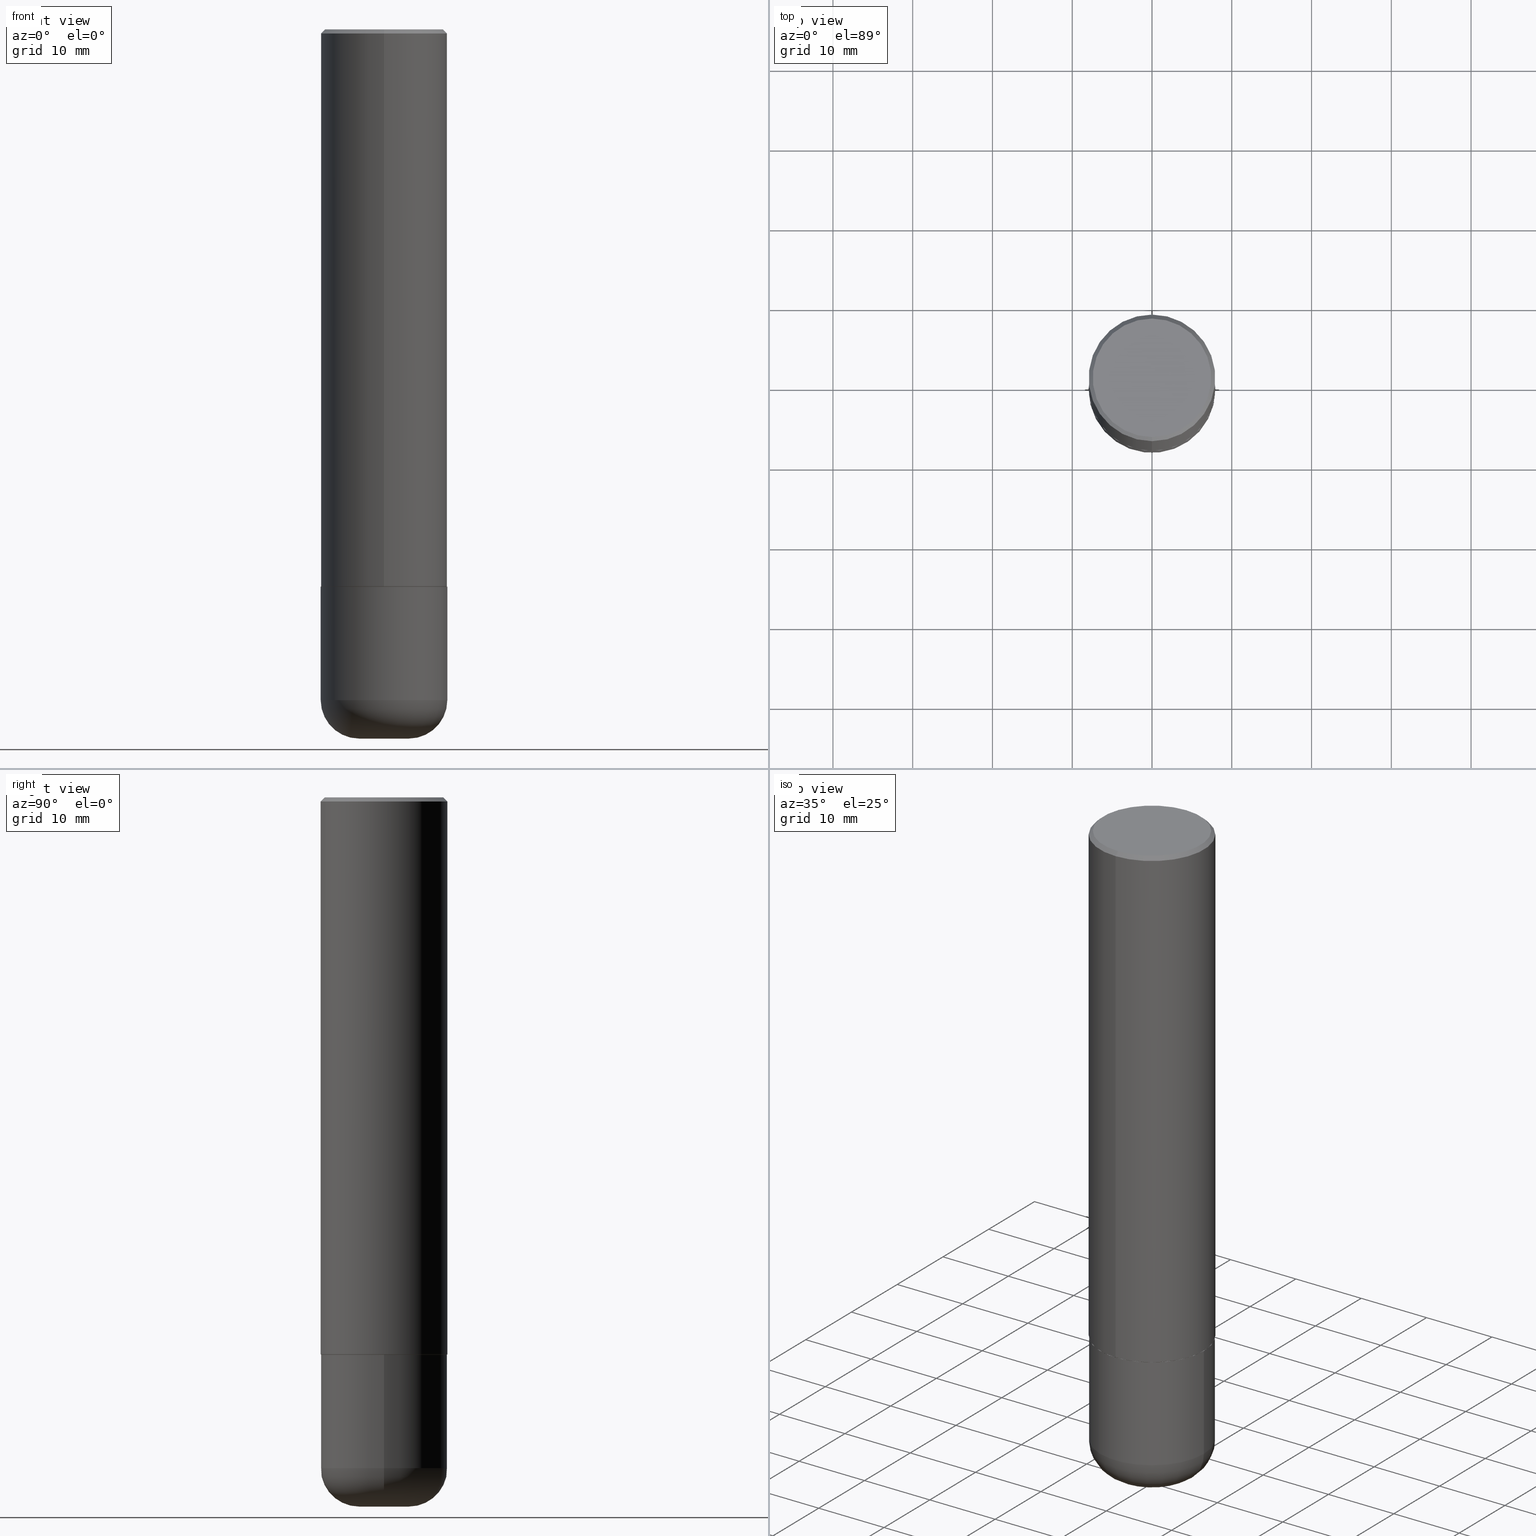
[diagram: canonical four-view strip — front | top / right | iso, engineering-drawing reading convention]
A machine part, canonical four-view strip (front | top / right | iso — engineering-drawing reading convention). The complete STEP part file that produces these views, byte-faithful:
ISO-10303-21;
HEADER;
FILE_DESCRIPTION (( 'STEP AP203' ),
    '1' );
FILE_NAME ('38595.STEP',
    '2024-03-03T07:12:36',
    ( '' ),
    ( '' ),
    'SwSTEP 2.0',
    'SolidWorks 2023',
    '' );
FILE_SCHEMA (( 'CONFIG_CONTROL_DESIGN' ));
ENDSEC;

DATA;
#1 =( CONVERSION_BASED_UNIT ( 'INCH', #324 ) LENGTH_UNIT ( ) NAMED_UNIT ( #383 ) );
#2 = EDGE_LOOP ( 'NONE', ( #384, #65, #18, #104 ) ) ;
#3 = PRODUCT ( '38595', '38595', '', ( #318 ) ) ;
#4 = APPROVAL ( #395, 'UNSPECIFIED' ) ;
#5 = ORIENTED_EDGE ( 'NONE', *, *, #22, .T. ) ;
#6 = LOCAL_TIME ( 2, 12, 36.00000000000000000, #235 ) ;
#7 = FACE_OUTER_BOUND ( 'NONE', #216, .T. ) ;
#8 = SECURITY_CLASSIFICATION_LEVEL ( 'unclassified' ) ;
#9 = DIRECTION ( 'NONE',  ( -6.982962677686265133E-15, -1.000000000000000000, 3.496765431890258103E-15 ) ) ;
#10 = PERSON_AND_ORGANIZATION ( #37, #362 ) ;
#11 = DIRECTION ( 'NONE',  ( -4.851104656540965064E-15, -0.7071067811865501263, -0.7071067811865449082 ) ) ;
#12 = AXIS2_PLACEMENT_3D ( 'NONE', #349, #161, #189 ) ;
#13 = PRODUCT_RELATED_PRODUCT_CATEGORY ( 'detail', '', ( #3 ) ) ;
#14 = PERSON_AND_ORGANIZATION_ROLE ( 'design_supplier' ) ;
#15 = CARTESIAN_POINT ( 'NONE',  ( 4.889594666967924290E-31, -6.984885851938207279E-17, -0.02000000000000006981 ) ) ;
#16 = CARTESIAN_POINT ( 'NONE',  ( 8.559140821647976968E-29, -1.222018468595100934E-14, -3.500000000000000000 ) ) ;
#17 = DIRECTION ( 'NONE',  ( 1.000000000000000000, -6.982962677686269077E-15, 0.000000000000000000 ) ) ;
#18 = ORIENTED_EDGE ( 'NONE', *, *, #280, .F. ) ;
#19 = CONICAL_SURFACE ( 'NONE', #347, 0.3114999999999999991, 0.7853981633976873100 ) ;
#20 = CARTESIAN_POINT ( 'NONE',  ( -0.1225000000000000394, -1.034306350848269295E-14, -3.500000000000000000 ) ) ;
#21 = FACE_OUTER_BOUND ( 'NONE', #130, .T. ) ;
#22 = EDGE_CURVE ( 'NONE', #97, #25, #337, .T. ) ;
#23 = PLANE ( 'NONE',  #356 ) ;
#24 = PLANE ( 'NONE',  #84 ) ;
#25 = VERTEX_POINT ( 'NONE', #68 ) ;
#26 = DIRECTION ( 'NONE',  ( -2.444797333483953649E-29, 3.492442925969092226E-15, 1.000000000000000000 ) ) ;
#27 = ORIENTED_EDGE ( 'NONE', *, *, #202, .F. ) ;
#28 = CLOSED_SHELL ( 'NONE', ( #339, #131, #184, #73, #197, #113, #138, #223 ) ) ;
#29 = ORIENTED_EDGE ( 'NONE', *, *, #63, .T. ) ;
#30 = LINE ( 'NONE', #159, #148 ) ;
#31 = EDGE_LOOP ( 'NONE', ( #76, #88, #91, #300 ) ) ;
#32 = EDGE_CURVE ( 'NONE', #315, #268, #346, .T. ) ;
#33 =( NAMED_UNIT ( * ) SI_UNIT ( $, .STERADIAN. ) SOLID_ANGLE_UNIT ( ) );
#34 = ORIENTED_EDGE ( 'NONE', *, *, #253, .F. ) ;
#35 = DIRECTION ( 'NONE',  ( -2.444797333483953649E-29, 3.492442925969092226E-15, 1.000000000000000000 ) ) ;
#36 = CC_DESIGN_APPROVAL ( #413, ( #304 ) ) ;
#37 = PERSON ( 'UNSPECIFIED', 'UNSPECIFIED', 'UNSPECIFIED', ('UNSPECIFIED'), ('UNSPECIFIED'), ('UNSPECIFIED') ) ;
#38 = APPROVAL_ROLE ( '' ) ;
#39 = CARTESIAN_POINT ( 'NONE',  ( 6.723192667080871976E-29, -9.604218046415003522E-15, -2.750000000000000000 ) ) ;
#40 = CC_DESIGN_PERSON_AND_ORGANIZATION_ASSIGNMENT ( #330, #265, ( #304 ) ) ;
#41 = DIRECTION ( 'NONE',  ( -2.445468806185136597E-29, 3.491481338843145583E-15, 1.000000000000000000 ) ) ;
#42 = APPROVAL_DATE_TIME ( #168, #413 ) ;
#43 = CARTESIAN_POINT ( 'NONE',  ( 4.889594666967924290E-31, -6.984885851938207279E-17, -0.02000000000000006981 ) ) ;
#44 = AXIS2_PLACEMENT_3D ( 'NONE', #306, #374, #17 ) ;
#45 = CARTESIAN_POINT ( 'NONE',  ( -7.103116949044670066E-45, 1.014694764316955508E-30, 2.905401135611673704E-16 ) ) ;
#46 = CARTESIAN_POINT ( 'NONE',  ( 0.000000000000000000, 0.000000000000000000, 0.000000000000000000 ) ) ;
#47 = LINE ( 'NONE', #49, #238 ) ;
#48 = CARTESIAN_POINT ( 'NONE',  ( 8.094501748472800969E-29, -1.155680323157081116E-14, -3.310000000000000053 ) ) ;
#49 = CARTESIAN_POINT ( 'NONE',  ( 2.182175836776957558E-15, 0.3124999999999998335, -0.02000000000000116268 ) ) ;
#50 = CARTESIAN_POINT ( 'NONE',  ( 4.889594666967924290E-31, -6.984885851938207279E-17, -0.02000000000000006981 ) ) ;
#51 = EDGE_CURVE ( 'NONE', #126, #386, #263, .T. ) ;
#52 = AXIS2_PLACEMENT_3D ( 'NONE', #287, #388, #414 ) ;
#53 = ORIENTED_EDGE ( 'NONE', *, *, #202, .T. ) ;
#54 = ORIENTED_EDGE ( 'NONE', *, *, #246, .F. ) ;
#55 = ORIENTED_EDGE ( 'NONE', *, *, #320, .F. ) ;
#56 = AXIS2_PLACEMENT_3D ( 'NONE', #50, #345, #377 ) ;
#57 = CARTESIAN_POINT ( 'NONE',  ( 8.094501748472800969E-29, -1.155680323157081116E-14, -3.310000000000000053 ) ) ;
#58 = ORIENTED_EDGE ( 'NONE', *, *, #124, .F. ) ;
#59 = ADVANCED_FACE ( 'NONE', ( #262 ), #67, .T. ) ;
#60 = DIRECTION ( 'NONE',  ( -6.982962677686265922E-15, -1.000000000000000000, 3.496765431890253764E-15 ) ) ;
#61 = ORIENTED_EDGE ( 'NONE', *, *, #155, .T. ) ;
#62 = DIRECTION ( 'NONE',  ( -6.982962677686266711E-15, -1.000000000000000000, 3.492442925969092620E-15 ) ) ;
#63 = EDGE_CURVE ( 'NONE', #97, #222, #256, .T. ) ;
#64 = CALENDAR_DATE ( 2024, 3, 3 ) ;
#65 = ORIENTED_EDGE ( 'NONE', *, *, #296, .T. ) ;
#66 = CALENDAR_DATE ( 2024, 3, 3 ) ;
#67 = CYLINDRICAL_SURFACE ( 'NONE', #270, 0.3125000000000000000 ) ;
#68 = CARTESIAN_POINT ( 'NONE',  ( -2.182175836776892872E-15, -0.3125000000000099365, -2.748999999999999222 ) ) ;
#69 = DATE_TIME_ROLE ( 'creation_date' ) ;
#70 = CARTESIAN_POINT ( 'NONE',  ( 6.725039217009124520E-29, -9.601573681818649859E-15, -2.750000000000000000 ) ) ;
#71 = CIRCLE ( 'NONE', #128, 0.3124999999999998890 ) ;
#72 = AXIS2_PLACEMENT_3D ( 'NONE', #340, #241, #275 ) ;
#73 = ADVANCED_FACE ( 'NONE', ( #167 ), #403, .T. ) ;
#74 = DIRECTION ( 'NONE',  ( -1.000000000000000000, 6.982962677686265922E-15, -4.876176775795935793E-29 ) ) ;
#75 = CARTESIAN_POINT ( 'NONE',  ( 0.3125000000000000000, -1.178374951859560978E-14, -2.750000000000000000 ) ) ;
#76 = ORIENTED_EDGE ( 'NONE', *, *, #98, .F. ) ;
#77 = ADVANCED_BREP_SHAPE_REPRESENTATION ( '38595', ( #233, #109, #213 ), #313 ) ;
#78 = APPROVAL ( #232, 'UNSPECIFIED' ) ;
#79 = DIRECTION ( 'NONE',  ( -2.445468806185136877E-29, 3.491481338843145188E-15, 1.000000000000000000 ) ) ;
#80 = DIRECTION ( 'NONE',  ( -6.982962677686266711E-15, -1.000000000000000000, 3.491481338843145583E-15 ) ) ;
#81 = LINE ( 'NONE', #243, #397 ) ;
#82 = FACE_OUTER_BOUND ( 'NONE', #152, .T. ) ;
#83 = AXIS2_PLACEMENT_3D ( 'NONE', #43, #194, #295 ) ;
#84 = AXIS2_PLACEMENT_3D ( 'NONE', #150, #370, #74 ) ;
#85 = FACE_OUTER_BOUND ( 'NONE', #252, .T. ) ;
#86 = ORIENTED_EDGE ( 'NONE', *, *, #371, .T. ) ;
#87 = DIRECTION ( 'NONE',  ( 0.000000000000000000, 0.000000000000000000, 1.000000000000000000 ) ) ;
#88 = ORIENTED_EDGE ( 'NONE', *, *, #173, .F. ) ;
#89 = APPLICATION_PROTOCOL_DEFINITION ( 'international standard', 'config_control_design', 1994, #387 ) ;
#90 = EDGE_CURVE ( 'NONE', #268, #315, #163, .T. ) ;
#91 = ORIENTED_EDGE ( 'NONE', *, *, #246, .T. ) ;
#92 = AXIS2_PLACEMENT_3D ( 'NONE', #39, #260, #401 ) ;
#93 = DIRECTION ( 'NONE',  ( -2.444797333483953649E-29, 3.492442925969092226E-15, 1.000000000000000000 ) ) ;
#94 = AXIS2_PLACEMENT_3D ( 'NONE', #282, #93, #60 ) ;
#95 = EDGE_LOOP ( 'NONE', ( #385, #160, #53, #281 ) ) ;
#96 = PERSON_AND_ORGANIZATION ( #37, #362 ) ;
#97 = VERTEX_POINT ( 'NONE', #331 ) ;
#98 = EDGE_CURVE ( 'NONE', #126, #319, #225, .T. ) ;
#99 = APPROVAL_DATE_TIME ( #199, #78 ) ;
#100 = CARTESIAN_POINT ( 'NONE',  ( -2.143905624303602036E-15, -0.3124999999999999445, -0.01999999999999897693 ) ) ;
#101 = DATE_TIME_ROLE ( 'classification_date' ) ;
#102 = AXIS2_PLACEMENT_3D ( 'NONE', #171, #139, #267 ) ;
#103 = CARTESIAN_POINT ( 'NONE',  ( 0.000000000000000000, 0.000000000000000000, 0.000000000000000000 ) ) ;
#104 = ORIENTED_EDGE ( 'NONE', *, *, #179, .F. ) ;
#105 = PERSON_AND_ORGANIZATION_ROLE ( 'classification_officer' ) ;
#106 = DIRECTION ( 'NONE',  ( -2.444797333483953089E-29, 3.492442925969092620E-15, 1.000000000000000000 ) ) ;
#107 = EDGE_CURVE ( 'NONE', #25, #319, #198, .T. ) ;
#108 = DIRECTION ( 'NONE',  ( -2.444797333483953649E-29, 3.492442925969092226E-15, 1.000000000000000000 ) ) ;
#109 = MANIFOLD_SOLID_BREP ( 'Body-Move/Copy2[2]', #28 ) ;
#110 = AXIS2_PLACEMENT_3D ( 'NONE', #45, #234, #62 ) ;
#111 = VECTOR ( 'NONE', #221, 39.37007874015748143 ) ;
#112 = DIRECTION ( 'NONE',  ( 1.000000000000000000, -6.982962677686269077E-15, 0.000000000000000000 ) ) ;
#113 = ADVANCED_FACE ( 'NONE', ( #7 ), #212, .T. ) ;
#114 = DIRECTION ( 'NONE',  ( 1.000000000000000000, -6.982962677686261977E-15, 0.000000000000000000 ) ) ;
#115 = CARTESIAN_POINT ( 'NONE',  ( 4.889594666967924290E-31, -6.984885851938207279E-17, -0.02000000000000006981 ) ) ;
#116 = AXIS2_PLACEMENT_3D ( 'NONE', #46, #279, #174 ) ;
#117 = DIRECTION ( 'NONE',  ( -6.982962677686265922E-15, -1.000000000000000000, 3.507991003100177457E-15 ) ) ;
#118 = DIRECTION ( 'NONE',  ( 1.000000000000000000, -6.982962677686269077E-15, 4.883557194083114022E-29 ) ) ;
#119 = ORIENTED_EDGE ( 'NONE', *, *, #179, .T. ) ;
#120 = CIRCLE ( 'NONE', #369, 0.3125000000000002776 ) ;
#121 = AXIS2_PLACEMENT_3D ( 'NONE', #410, #408, #117 ) ;
#122 =( LENGTH_UNIT ( ) NAMED_UNIT ( * ) SI_UNIT ( $, .METRE. ) );
#123 = ORIENTED_EDGE ( 'NONE', *, *, #107, .F. ) ;
#124 = EDGE_CURVE ( 'NONE', #240, #319, #71, .T. ) ;
#125 = PERSON_AND_ORGANIZATION_ROLE ( 'design_owner' ) ;
#126 = VERTEX_POINT ( 'NONE', #135 ) ;
#127 = ORIENTED_EDGE ( 'NONE', *, *, #351, .T. ) ;
#128 = AXIS2_PLACEMENT_3D ( 'NONE', #15, #136, #9 ) ;
#129 = TOROIDAL_SURFACE ( 'NONE', #137, 0.1225000000000000255, 0.1899999999999999467 ) ;
#130 = EDGE_LOOP ( 'NONE', ( #205, #416, #352, #54 ) ) ;
#131 = ADVANCED_FACE ( 'NONE', ( #332 ), #165, .T. ) ;
#132 = COORDINATED_UNIVERSAL_TIME_OFFSET ( 5, 0, .BEHIND. ) ;
#133 = CARTESIAN_POINT ( 'NONE',  ( 0.000000000000000000, 0.000000000000000000, 0.000000000000000000 ) ) ;
#134 = PERSON_AND_ORGANIZATION ( #37, #362 ) ;
#135 = CARTESIAN_POINT ( 'NONE',  ( -2.075300644325885521E-15, -0.2924999999999994826, 1.312079669407125151E-15 ) ) ;
#136 = DIRECTION ( 'NONE',  ( -2.444797333483953649E-29, 3.492442925969092226E-15, 1.000000000000000000 ) ) ;
#137 = AXIS2_PLACEMENT_3D ( 'NONE', #57, #219, #118 ) ;
#138 = ADVANCED_FACE ( 'NONE', ( #396 ), #364, .F. ) ;
#139 = DIRECTION ( 'NONE',  ( -2.445468806185136597E-29, 3.491481338843145583E-15, 1.000000000000000000 ) ) ;
#140 = DIRECTION ( 'NONE',  ( -2.445468806185136597E-29, 3.491481338843145583E-15, 1.000000000000000000 ) ) ;
#141 = CARTESIAN_POINT ( 'NONE',  ( 2.220446049250347791E-15, 0.3124999999999906741, -2.749000000000000998 ) ) ;
#142 = AXIS2_PLACEMENT_3D ( 'NONE', #133, #394, #226 ) ;
#143 = LOCAL_TIME ( 2, 12, 36.00000000000000000, #132 ) ;
#144 = ADVANCED_FACE ( 'NONE', ( #231 ), #380, .T. ) ;
#145 = FACE_OUTER_BOUND ( 'NONE', #190, .T. ) ;
#146 = DIRECTION ( 'NONE',  ( -2.445468806185136597E-29, 3.491481338843145583E-15, 1.000000000000000000 ) ) ;
#147 = CYLINDRICAL_SURFACE ( 'NONE', #116, 0.3125000000000000555 ) ;
#148 = VECTOR ( 'NONE', #251, 39.37007874015748143 ) ;
#149 = EDGE_CURVE ( 'NONE', #418, #373, #191, .T. ) ;
#150 = CARTESIAN_POINT ( 'NONE',  ( 6.725039217009124520E-29, -9.601573681818649859E-15, -2.750000000000000000 ) ) ;
#151 = APPLICATION_CONTEXT ( 'configuration controlled 3d designs of mechanical parts and assemblies' ) ;
#152 = EDGE_LOOP ( 'NONE', ( #29, #393, #258, #317 ) ) ;
#153 = CYLINDRICAL_SURFACE ( 'NONE', #12, 0.3125000000000000000 ) ;
#154 = ORIENTED_EDGE ( 'NONE', *, *, #90, .F. ) ;
#155 = EDGE_CURVE ( 'NONE', #325, #186, #341, .T. ) ;
#156 = AXIS2_PLACEMENT_3D ( 'NONE', #372, #108, #203 ) ;
#157 = CARTESIAN_POINT ( 'NONE',  ( -2.143905624303602036E-15, -0.3124999999999999445, -0.01999999999999897693 ) ) ;
#158 = ORIENTED_EDGE ( 'NONE', *, *, #63, .F. ) ;
#159 = CARTESIAN_POINT ( 'NONE',  ( 2.220446049250313081E-15, 0.3125000000000000555, -1.091388414365341542E-15 ) ) ;
#160 = ORIENTED_EDGE ( 'NONE', *, *, #90, .T. ) ;
#161 = DIRECTION ( 'NONE',  ( -2.445468806185136597E-29, 3.491481338843145583E-15, 1.000000000000000000 ) ) ;
#162 = ORIENTED_EDGE ( 'NONE', *, *, #51, .T. ) ;
#163 = CIRCLE ( 'NONE', #227, 0.1225000000000000394 ) ;
#164 = LOCAL_TIME ( 2, 12, 36.00000000000000000, #398 ) ;
#165 = CYLINDRICAL_SURFACE ( 'NONE', #142, 0.3125000000000000555 ) ;
#166 = PERSON_AND_ORGANIZATION ( #37, #362 ) ;
#167 = FACE_OUTER_BOUND ( 'NONE', #31, .T. ) ;
#168 = DATE_AND_TIME ( #230, #6 ) ;
#169 = CARTESIAN_POINT ( 'NONE',  ( -2.175192874099204491E-15, -0.3115000000000096581, -2.749999999999998668 ) ) ;
#170 = EDGE_CURVE ( 'NONE', #25, #283, #120, .T. ) ;
#171 = CARTESIAN_POINT ( 'NONE',  ( 8.094501748472800969E-29, -1.155680323157081116E-14, -3.310000000000000053 ) ) ;
#172 = CARTESIAN_POINT ( 'NONE',  ( -2.182175836776958741E-15, -0.3125000000000000555, 1.091388414365341542E-15 ) ) ;
#173 = EDGE_CURVE ( 'NONE', #386, #126, #176, .T. ) ;
#174 = DIRECTION ( 'NONE',  ( -6.982962677686266711E-15, -1.000000000000000000, 3.492442925969092226E-15 ) ) ;
#175 = FACE_OUTER_BOUND ( 'NONE', #389, .T. ) ;
#176 = CIRCLE ( 'NONE', #156, 0.2924999999999994826 ) ;
#177 = DIRECTION ( 'NONE',  ( 2.438088387897960049E-29, -3.491481338843145188E-15, -1.000000000000000000 ) ) ;
#178 = DIRECTION ( 'NONE',  ( 4.937700262164548831E-15, 0.7071067811865452413, -0.7071067811865497932 ) ) ;
#179 = EDGE_CURVE ( 'NONE', #373, #186, #81, .T. ) ;
#180 = CARTESIAN_POINT ( 'NONE',  ( 8.559140821647976968E-29, -1.222018468595100934E-14, -3.500000000000000000 ) ) ;
#181 = APPROVAL_PERSON_ORGANIZATION ( #134, #78, #38 ) ;
#182 = ORIENTED_EDGE ( 'NONE', *, *, #402, .F. ) ;
#183 = DIRECTION ( 'NONE',  ( 1.000000000000000000, 0.000000000000000000, 0.000000000000000000 ) ) ;
#184 = ADVANCED_FACE ( 'NONE', ( #21 ), #244, .T. ) ;
#185 = ORIENTED_EDGE ( 'NONE', *, *, #320, .T. ) ;
#186 = VERTEX_POINT ( 'NONE', #75 ) ;
#187 = CC_DESIGN_SECURITY_CLASSIFICATION ( #415, ( #391 ) ) ;
#188 = ORIENTED_EDGE ( 'NONE', *, *, #32, .T. ) ;
#189 = DIRECTION ( 'NONE',  ( 1.000000000000000000, -6.982962677686266711E-15, 4.876176775795936353E-29 ) ) ;
#190 = EDGE_LOOP ( 'NONE', ( #348, #162 ) ) ;
#191 = CIRCLE ( 'NONE', #334, 0.3125000000000000000 ) ;
#192 = AXIS2_PLACEMENT_3D ( 'NONE', #115, #311, #344 ) ;
#193 = SHAPE_DEFINITION_REPRESENTATION ( #255, #77 ) ;
#194 = DIRECTION ( 'NONE',  ( 2.444797333483953649E-29, -3.492442925969092226E-15, -1.000000000000000000 ) ) ;
#195 = APPROVAL_ROLE ( '' ) ;
#196 = DIRECTION ( 'NONE',  ( -6.982962677686265922E-15, -1.000000000000000000, 3.492442925969092620E-15 ) ) ;
#197 = ADVANCED_FACE ( 'NONE', ( #309 ), #147, .T. ) ;
#198 = LINE ( 'NONE', #172, #375 ) ;
#199 = DATE_AND_TIME ( #360, #164 ) ;
#200 = VECTOR ( 'NONE', #359, 39.37007874015748143 ) ;
#201 = DIRECTION ( 'NONE',  ( -2.445468806185136597E-29, 3.491481338843145583E-15, 1.000000000000000000 ) ) ;
#202 = EDGE_CURVE ( 'NONE', #315, #373, #301, .T. ) ;
#203 = DIRECTION ( 'NONE',  ( -6.982962677686266711E-15, -1.000000000000000000, 3.492442925969092620E-15 ) ) ;
#204 = PLANE ( 'NONE',  #72 ) ;
#205 = ORIENTED_EDGE ( 'NONE', *, *, #51, .F. ) ;
#206 = CARTESIAN_POINT ( 'NONE',  ( 0.1225000000000000394, -1.307559761396757607E-14, -3.500000000000000000 ) ) ;
#207 = UNCERTAINTY_MEASURE_WITH_UNIT (LENGTH_MEASURE( 1.000000000000000082E-05 ), #1, 'distance_accuracy_value', 'NONE');
#208 = DIRECTION ( 'NONE',  ( 1.000000000000000000, -6.982962677686269077E-15, 0.000000000000000000 ) ) ;
#209 = CC_DESIGN_DATE_AND_TIME_ASSIGNMENT ( #259, #101, ( #415 ) ) ;
#210 = DIRECTION ( 'NONE',  ( -2.445468806185136597E-29, 3.491481338843145583E-15, 1.000000000000000000 ) ) ;
#211 = CARTESIAN_POINT ( 'NONE',  ( 6.723192667080871976E-29, -9.604218046415003522E-15, -2.750000000000000000 ) ) ;
#212 = CONICAL_SURFACE ( 'NONE', #285, 0.3114999999999999991, 0.7853981633976873100 ) ;
#213 = AXIS2_PLACEMENT_3D ( 'NONE', #381, #87, #183 ) ;
#214 = EDGE_CURVE ( 'NONE', #373, #418, #257, .T. ) ;
#215 = APPLICATION_PROTOCOL_DEFINITION ( 'international standard', 'config_control_design', 1994, #151 ) ;
#216 = EDGE_LOOP ( 'NONE', ( #182, #250, #5, #220 ) ) ;
#217 = CARTESIAN_POINT ( 'NONE',  ( -0.3125000000000000000, -9.336357182320498084E-15, -3.310000000000000053 ) ) ;
#218 = ORIENTED_EDGE ( 'NONE', *, *, #242, .F. ) ;
#219 = DIRECTION ( 'NONE',  ( -2.445468806185136597E-29, 3.491481338843145583E-15, 1.000000000000000000 ) ) ;
#220 = ORIENTED_EDGE ( 'NONE', *, *, #371, .F. ) ;
#221 = DIRECTION ( 'NONE',  ( 5.024295867789263036E-15, 0.7071067811867189912, 0.7071067811863760433 ) ) ;
#222 = VERTEX_POINT ( 'NONE', #343 ) ;
#223 = ADVANCED_FACE ( 'NONE', ( #145 ), #204, .F. ) ;
#224 = APPROVAL_DATE_TIME ( #336, #4 ) ;
#225 = LINE ( 'NONE', #100, #307 ) ;
#226 = DIRECTION ( 'NONE',  ( -6.982962677686266711E-15, -1.000000000000000000, 3.492442925969092226E-15 ) ) ;
#227 = AXIS2_PLACEMENT_3D ( 'NONE', #16, #305, #266 ) ;
#228 = CC_DESIGN_APPROVAL ( #4, ( #415 ) ) ;
#229 = ADVANCED_FACE ( 'NONE', ( #409 ), #23, .T. ) ;
#230 = CALENDAR_DATE ( 2024, 3, 3 ) ;
#231 = FACE_OUTER_BOUND ( 'NONE', #95, .T. ) ;
#232 = APPROVAL_STATUS ( 'not_yet_approved' ) ;
#233 = MANIFOLD_SOLID_BREP ( 'Body-Move/Copy2[1]', #390 ) ;
#234 = DIRECTION ( 'NONE',  ( -2.444797333483953649E-29, 3.492442925969092226E-15, 1.000000000000000000 ) ) ;
#235 = COORDINATED_UNIVERSAL_TIME_OFFSET ( 5, 0, .BEHIND. ) ;
#236 = CARTESIAN_POINT ( 'NONE',  ( 8.094501748472800969E-29, -1.155680323157081116E-14, -3.310000000000000053 ) ) ;
#237 = CARTESIAN_POINT ( 'NONE',  ( 0.1225000000000000255, -1.241221615958737947E-14, -3.310000000000000053 ) ) ;
#238 = VECTOR ( 'NONE', #178, 39.37007874015748143 ) ;
#239 = DIRECTION ( 'NONE',  ( -6.982962677686265922E-15, -1.000000000000000000, 3.496765431890253764E-15 ) ) ;
#240 = VERTEX_POINT ( 'NONE', #338 ) ;
#241 = DIRECTION ( 'NONE',  ( 2.444797333483953089E-29, -3.492442925969092620E-15, -1.000000000000000000 ) ) ;
#242 = EDGE_CURVE ( 'NONE', #319, #240, #277, .T. ) ;
#243 = CARTESIAN_POINT ( 'NONE',  ( 0.3125000000000000000, -2.182175836776958347E-15, 1.523805242436230075E-29 ) ) ;
#244 = CONICAL_SURFACE ( 'NONE', #56, 0.3124999999999998890, 0.7853981633974485010 ) ;
#245 = CARTESIAN_POINT ( 'NONE',  ( 0.3125000000000000000, -1.373897906834776951E-14, -3.310000000000000053 ) ) ;
#246 = EDGE_CURVE ( 'NONE', #386, #240, #47, .T. ) ;
#247 = ORIENTED_EDGE ( 'NONE', *, *, #214, .F. ) ;
#248 = AXIS2_PLACEMENT_3D ( 'NONE', #70, #210, #112 ) ;
#249 =( NAMED_UNIT ( * ) PLANE_ANGLE_UNIT ( ) SI_UNIT ( $, .RADIAN. ) );
#250 = ORIENTED_EDGE ( 'NONE', *, *, #253, .T. ) ;
#251 = DIRECTION ( 'NONE',  ( -2.444797333483953649E-29, 3.492442925969092620E-15, 1.000000000000000000 ) ) ;
#252 = EDGE_LOOP ( 'NONE', ( #188, #127, #247, #27 ) ) ;
#253 = EDGE_CURVE ( 'NONE', #222, #97, #294, .T. ) ;
#254 = EDGE_LOOP ( 'NONE', ( #158, #34 ) ) ;
#255 = PRODUCT_DEFINITION_SHAPE ( 'NONE', 'NONE',  #304 ) ;
#256 = CIRCLE ( 'NONE', #92, 0.3114999999999999991 ) ;
#257 = CIRCLE ( 'NONE', #404, 0.3125000000000000000 ) ;
#258 = ORIENTED_EDGE ( 'NONE', *, *, #170, .F. ) ;
#259 = DATE_AND_TIME ( #64, #328 ) ;
#260 = DIRECTION ( 'NONE',  ( -2.444797333483953649E-29, 3.492442925969092226E-15, 1.000000000000000000 ) ) ;
#261 = ADVANCED_FACE ( 'NONE', ( #175 ), #24, .F. ) ;
#262 = FACE_OUTER_BOUND ( 'NONE', #291, .T. ) ;
#263 = CIRCLE ( 'NONE', #110, 0.2924999999999994826 ) ;
#264 = CIRCLE ( 'NONE', #52, 0.1899999999999999745 ) ;
#265 = PERSON_AND_ORGANIZATION_ROLE ( 'creator' ) ;
#266 = DIRECTION ( 'NONE',  ( 1.000000000000000000, -6.982962677686263555E-15, 0.000000000000000000 ) ) ;
#267 = DIRECTION ( 'NONE',  ( 1.000000000000000000, -6.982962677686269077E-15, 4.883557194083114022E-29 ) ) ;
#268 = VERTEX_POINT ( 'NONE', #20 ) ;
#269 = CC_DESIGN_DATE_AND_TIME_ASSIGNMENT ( #299, #69, ( #304 ) ) ;
#270 = AXIS2_PLACEMENT_3D ( 'NONE', #103, #140, #365 ) ;
#271 = CC_DESIGN_APPROVAL ( #78, ( #391 ) ) ;
#272 = CARTESIAN_POINT ( 'NONE',  ( 6.720747869747387921E-29, -9.600725603489034077E-15, -2.749000000000000110 ) ) ;
#273 = CARTESIAN_POINT ( 'NONE',  ( -0.3125000000000000000, 2.220446049250313081E-15, -1.537167215704658232E-29 ) ) ;
#274 = CC_DESIGN_PERSON_AND_ORGANIZATION_ASSIGNMENT ( #10, #105, ( #415 ) ) ;
#275 = DIRECTION ( 'NONE',  ( 6.982962677686265922E-15, 1.000000000000000000, -3.492442925969092620E-15 ) ) ;
#276 = DIRECTION ( 'NONE',  ( -1.000000000000000000, 6.982962677686265922E-15, -4.876176775795935793E-29 ) ) ;
#277 = CIRCLE ( 'NONE', #192, 0.3124999999999998890 ) ;
#278 = EDGE_LOOP ( 'NONE', ( #322, #154 ) ) ;
#279 = DIRECTION ( 'NONE',  ( -2.444797333483953649E-29, 3.492442925969092226E-15, 1.000000000000000000 ) ) ;
#280 = EDGE_CURVE ( 'NONE', #186, #325, #405, .T. ) ;
#281 = ORIENTED_EDGE ( 'NONE', *, *, #149, .F. ) ;
#282 = CARTESIAN_POINT ( 'NONE',  ( 6.720747869747387921E-29, -9.600725603489034077E-15, -2.749000000000000110 ) ) ;
#283 = VERTEX_POINT ( 'NONE', #141 ) ;
#284 = ORIENTED_EDGE ( 'NONE', *, *, #155, .F. ) ;
#285 = AXIS2_PLACEMENT_3D ( 'NONE', #327, #35, #399 ) ;
#286 = APPROVAL_PERSON_ORGANIZATION ( #96, #4, #363 ) ;
#287 = CARTESIAN_POINT ( 'NONE',  ( -0.1225000000000000255, -1.068638838026468806E-14, -3.310000000000000053 ) ) ;
#288 = ORIENTED_EDGE ( 'NONE', *, *, #280, .T. ) ;
#289 = CC_DESIGN_PERSON_AND_ORGANIZATION_ASSIGNMENT ( #297, #14, ( #391 ) ) ;
#290 = DIRECTION ( 'NONE',  ( -6.982962677686265922E-15, -1.000000000000000000, 3.507991003100177457E-15 ) ) ;
#291 = EDGE_LOOP ( 'NONE', ( #293, #407, #119, #284 ) ) ;
#292 = CALENDAR_DATE ( 2024, 3, 3 ) ;
#293 = ORIENTED_EDGE ( 'NONE', *, *, #296, .F. ) ;
#294 = CIRCLE ( 'NONE', #121, 0.3114999999999999991 ) ;
#295 = DIRECTION ( 'NONE',  ( 6.982962677686265133E-15, 1.000000000000000000, -3.496765431890258103E-15 ) ) ;
#296 = EDGE_CURVE ( 'NONE', #418, #325, #308, .T. ) ;
#297 = PERSON_AND_ORGANIZATION ( #37, #362 ) ;
#298 = DIRECTION ( 'NONE',  ( -2.444797333483953649E-29, 3.492442925969092620E-15, 1.000000000000000000 ) ) ;
#299 = DATE_AND_TIME ( #292, #342 ) ;
#300 = ORIENTED_EDGE ( 'NONE', *, *, #124, .T. ) ;
#301 = CIRCLE ( 'NONE', #382, 0.1899999999999999745 ) ;
#302 = CIRCLE ( 'NONE', #94, 0.3125000000000002776 ) ;
#303 = COORDINATED_UNIVERSAL_TIME_OFFSET ( 5, 0, .BEHIND. ) ;
#304 = PRODUCT_DEFINITION ( 'UNKNOWN', '', #391, #323 ) ;
#305 = DIRECTION ( 'NONE',  ( -2.445468806185136597E-29, 3.491481338843145583E-15, 1.000000000000000000 ) ) ;
#306 = CARTESIAN_POINT ( 'NONE',  ( 6.725039217009124520E-29, -9.601573681818649859E-15, -2.750000000000000000 ) ) ;
#307 = VECTOR ( 'NONE', #11, 39.37007874015748143 ) ;
#308 = LINE ( 'NONE', #273, #335 ) ;
#309 = FACE_OUTER_BOUND ( 'NONE', #358, .T. ) ;
#310 = DIRECTION ( 'NONE',  ( -2.445468806185136877E-29, 3.491481338843145188E-15, 1.000000000000000000 ) ) ;
#311 = DIRECTION ( 'NONE',  ( -2.444797333483953649E-29, 3.492442925969092226E-15, 1.000000000000000000 ) ) ;
#312 = AXIS2_PLACEMENT_3D ( 'NONE', #361, #106, #196 ) ;
#313 =( GEOMETRIC_REPRESENTATION_CONTEXT ( 3 ) GLOBAL_UNCERTAINTY_ASSIGNED_CONTEXT ( ( #207 ) ) GLOBAL_UNIT_ASSIGNED_CONTEXT ( ( #1, #249, #33 ) ) REPRESENTATION_CONTEXT ( 'NONE', 'WORKASPACE' ) );
#314 = ORIENTED_EDGE ( 'NONE', *, *, #107, .T. ) ;
#315 = VERTEX_POINT ( 'NONE', #206 ) ;
#316 = LINE ( 'NONE', #379, #111 ) ;
#317 = ORIENTED_EDGE ( 'NONE', *, *, #22, .F. ) ;
#318 = MECHANICAL_CONTEXT ( 'NONE', #151, 'mechanical' ) ;
#319 = VERTEX_POINT ( 'NONE', #157 ) ;
#320 = EDGE_CURVE ( 'NONE', #283, #240, #30, .T. ) ;
#321 = APPROVAL_STATUS ( 'not_yet_approved' ) ;
#322 = ORIENTED_EDGE ( 'NONE', *, *, #32, .F. ) ;
#323 = DESIGN_CONTEXT ( 'detailed design', #387, 'design' ) ;
#324 = LENGTH_MEASURE_WITH_UNIT ( LENGTH_MEASURE( 0.02539999999999999897 ), #122 );
#325 = VERTEX_POINT ( 'NONE', #357 ) ;
#326 = ADVANCED_FACE ( 'NONE', ( #411 ), #153, .T. ) ;
#327 = CARTESIAN_POINT ( 'NONE',  ( 6.723192667080871976E-29, -9.604218046415003522E-15, -2.750000000000000000 ) ) ;
#328 = LOCAL_TIME ( 2, 12, 36.00000000000000000, #303 ) ;
#329 = CARTESIAN_POINT ( 'NONE',  ( 8.559140821647976968E-29, -1.222018468595100934E-14, -3.500000000000000000 ) ) ;
#330 = PERSON_AND_ORGANIZATION ( #37, #362 ) ;
#331 = CARTESIAN_POINT ( 'NONE',  ( -2.175192874099204491E-15, -0.3115000000000096581, -2.749999999999998668 ) ) ;
#332 = FACE_OUTER_BOUND ( 'NONE', #354, .T. ) ;
#333 = ADVANCED_FACE ( 'NONE', ( #85 ), #129, .T. ) ;
#334 = AXIS2_PLACEMENT_3D ( 'NONE', #236, #41, #368 ) ;
#335 = VECTOR ( 'NONE', #79, 39.37007874015748143 ) ;
#336 = DATE_AND_TIME ( #66, #143 ) ;
#337 = LINE ( 'NONE', #169, #200 ) ;
#338 = CARTESIAN_POINT ( 'NONE',  ( 2.182175836776957558E-15, 0.3124999999999998335, -0.02000000000000116268 ) ) ;
#339 = ADVANCED_FACE ( 'NONE', ( #82 ), #19, .T. ) ;
#340 = CARTESIAN_POINT ( 'NONE',  ( 2.042516583223229384E-15, 0.2924999999999994826, -8.762694990653740957E-16 ) ) ;
#341 = CIRCLE ( 'NONE', #248, 0.3125000000000000000 ) ;
#342 = LOCAL_TIME ( 2, 12, 36.00000000000000000, #367 ) ;
#343 = CARTESIAN_POINT ( 'NONE',  ( 2.216893335571580419E-15, 0.3114999999999903957, -2.750000000000000888 ) ) ;
#344 = DIRECTION ( 'NONE',  ( -6.982962677686265133E-15, -1.000000000000000000, 3.496765431890258103E-15 ) ) ;
#345 = DIRECTION ( 'NONE',  ( 2.444797333483953649E-29, -3.492442925969092226E-15, -1.000000000000000000 ) ) ;
#346 = CIRCLE ( 'NONE', #355, 0.1225000000000000394 ) ;
#347 = AXIS2_PLACEMENT_3D ( 'NONE', #211, #26, #290 ) ;
#348 = ORIENTED_EDGE ( 'NONE', *, *, #173, .T. ) ;
#349 = CARTESIAN_POINT ( 'NONE',  ( 0.000000000000000000, 0.000000000000000000, 0.000000000000000000 ) ) ;
#350 = ORIENTED_EDGE ( 'NONE', *, *, #170, .T. ) ;
#351 = EDGE_CURVE ( 'NONE', #268, #418, #264, .T. ) ;
#352 = ORIENTED_EDGE ( 'NONE', *, *, #242, .T. ) ;
#353 = PERSON_AND_ORGANIZATION ( #37, #362 ) ;
#354 = EDGE_LOOP ( 'NONE', ( #350, #185, #218, #123 ) ) ;
#355 = AXIS2_PLACEMENT_3D ( 'NONE', #329, #201, #400 ) ;
#356 = AXIS2_PLACEMENT_3D ( 'NONE', #180, #177, #276 ) ;
#357 = CARTESIAN_POINT ( 'NONE',  ( -0.3125000000000000000, -8.358742407444418220E-15, -2.750000000000000000 ) ) ;
#358 = EDGE_LOOP ( 'NONE', ( #55, #86, #314, #58 ) ) ;
#359 = DIRECTION ( 'NONE',  ( -4.937700262165728178E-15, -0.7071067811867141062, 0.7071067811863809283 ) ) ;
#360 = CALENDAR_DATE ( 2024, 3, 3 ) ;
#361 = CARTESIAN_POINT ( 'NONE',  ( 6.723192667080871976E-29, -9.604218046415003522E-15, -2.750000000000000000 ) ) ;
#362 = ORGANIZATION ( 'UNSPECIFIED', 'UNSPECIFIED', '' ) ;
#363 = APPROVAL_ROLE ( '' ) ;
#364 = PLANE ( 'NONE',  #312 ) ;
#365 = DIRECTION ( 'NONE',  ( 1.000000000000000000, -6.982962677686266711E-15, 4.876176775795936353E-29 ) ) ;
#366 = CC_DESIGN_PERSON_AND_ORGANIZATION_ASSIGNMENT ( #166, #392, ( #391 ) ) ;
#367 = COORDINATED_UNIVERSAL_TIME_OFFSET ( 5, 0, .BEHIND. ) ;
#368 = DIRECTION ( 'NONE',  ( 1.000000000000000000, -6.982962677686269077E-15, 0.000000000000000000 ) ) ;
#369 = AXIS2_PLACEMENT_3D ( 'NONE', #272, #406, #239 ) ;
#370 = DIRECTION ( 'NONE',  ( 2.438088387897960049E-29, -3.491481338843145188E-15, -1.000000000000000000 ) ) ;
#371 = EDGE_CURVE ( 'NONE', #283, #25, #302, .T. ) ;
#372 = CARTESIAN_POINT ( 'NONE',  ( -7.103116949044670066E-45, 1.014694764316955508E-30, 2.905401135611673704E-16 ) ) ;
#373 = VERTEX_POINT ( 'NONE', #245 ) ;
#374 = DIRECTION ( 'NONE',  ( -2.445468806185136597E-29, 3.491481338843145583E-15, 1.000000000000000000 ) ) ;
#375 = VECTOR ( 'NONE', #298, 39.37007874015748143 ) ;
#376 = APPROVAL_PERSON_ORGANIZATION ( #353, #413, #195 ) ;
#377 = DIRECTION ( 'NONE',  ( 6.982962677686265133E-15, 1.000000000000000000, -3.496765431890258103E-15 ) ) ;
#378 = CC_DESIGN_PERSON_AND_ORGANIZATION_ASSIGNMENT ( #417, #125, ( #3 ) ) ;
#379 = CARTESIAN_POINT ( 'NONE',  ( 2.213340621892779126E-15, 0.3114999999999903957, -2.750000000000000888 ) ) ;
#380 = TOROIDAL_SURFACE ( 'NONE', #102, 0.1225000000000000255, 0.1899999999999999467 ) ;
#381 = CARTESIAN_POINT ( 'NONE',  ( 0.000000000000000000, 0.000000000000000000, 0.000000000000000000 ) ) ;
#382 = AXIS2_PLACEMENT_3D ( 'NONE', #237, #80, #114 ) ;
#383 = DIMENSIONAL_EXPONENTS ( 1.000000000000000000, 0.000000000000000000, 0.000000000000000000, 0.000000000000000000, 0.000000000000000000, 0.000000000000000000, 0.000000000000000000 ) ;
#384 = ORIENTED_EDGE ( 'NONE', *, *, #214, .T. ) ;
#385 = ORIENTED_EDGE ( 'NONE', *, *, #351, .F. ) ;
#386 = VERTEX_POINT ( 'NONE', #412 ) ;
#387 = APPLICATION_CONTEXT ( 'configuration controlled 3d designs of mechanical parts and assemblies' ) ;
#388 = DIRECTION ( 'NONE',  ( 7.105427357601001859E-15, 1.000000000000000000, -3.491481338843145583E-15 ) ) ;
#389 = EDGE_LOOP ( 'NONE', ( #288, #61 ) ) ;
#390 = CLOSED_SHELL ( 'NONE', ( #326, #333, #261, #59, #144, #229 ) ) ;
#391 = PRODUCT_DEFINITION_FORMATION_WITH_SPECIFIED_SOURCE ( 'ANY', '', #3, .NOT_KNOWN. ) ;
#392 = PERSON_AND_ORGANIZATION_ROLE ( 'creator' ) ;
#393 = ORIENTED_EDGE ( 'NONE', *, *, #402, .T. ) ;
#394 = DIRECTION ( 'NONE',  ( -2.444797333483953649E-29, 3.492442925969092226E-15, 1.000000000000000000 ) ) ;
#395 = APPROVAL_STATUS ( 'not_yet_approved' ) ;
#396 = FACE_OUTER_BOUND ( 'NONE', #254, .T. ) ;
#397 = VECTOR ( 'NONE', #310, 39.37007874015748143 ) ;
#398 = COORDINATED_UNIVERSAL_TIME_OFFSET ( 5, 0, .BEHIND. ) ;
#399 = DIRECTION ( 'NONE',  ( -6.982962677686265922E-15, -1.000000000000000000, 3.507991003100177457E-15 ) ) ;
#400 = DIRECTION ( 'NONE',  ( 1.000000000000000000, -6.982962677686263555E-15, 0.000000000000000000 ) ) ;
#401 = DIRECTION ( 'NONE',  ( -6.982962677686265922E-15, -1.000000000000000000, 3.507991003100177457E-15 ) ) ;
#402 = EDGE_CURVE ( 'NONE', #222, #283, #316, .T. ) ;
#403 = CONICAL_SURFACE ( 'NONE', #83, 0.3124999999999998890, 0.7853981633974485010 ) ;
#404 = AXIS2_PLACEMENT_3D ( 'NONE', #48, #146, #208 ) ;
#405 = CIRCLE ( 'NONE', #44, 0.3125000000000000000 ) ;
#406 = DIRECTION ( 'NONE',  ( -2.444797333483953649E-29, 3.492442925969092226E-15, 1.000000000000000000 ) ) ;
#407 = ORIENTED_EDGE ( 'NONE', *, *, #149, .T. ) ;
#408 = DIRECTION ( 'NONE',  ( -2.444797333483953649E-29, 3.492442925969092226E-15, 1.000000000000000000 ) ) ;
#409 = FACE_OUTER_BOUND ( 'NONE', #278, .T. ) ;
#410 = CARTESIAN_POINT ( 'NONE',  ( 6.723192667080871976E-29, -9.604218046415003522E-15, -2.750000000000000000 ) ) ;
#411 = FACE_OUTER_BOUND ( 'NONE', #2, .T. ) ;
#412 = CARTESIAN_POINT ( 'NONE',  ( 2.112346210000093471E-15, 0.2924999999999994826, -7.309994422847904105E-16 ) ) ;
#413 = APPROVAL ( #321, 'UNSPECIFIED' ) ;
#414 = DIRECTION ( 'NONE',  ( -1.000000000000000000, 7.105427357600998703E-15, 0.000000000000000000 ) ) ;
#415 = SECURITY_CLASSIFICATION ( '', '', #8 ) ;
#416 = ORIENTED_EDGE ( 'NONE', *, *, #98, .T. ) ;
#417 = PERSON_AND_ORGANIZATION ( #37, #362 ) ;
#418 = VERTEX_POINT ( 'NONE', #217 ) ;
ENDSEC;
END-ISO-10303-21;
